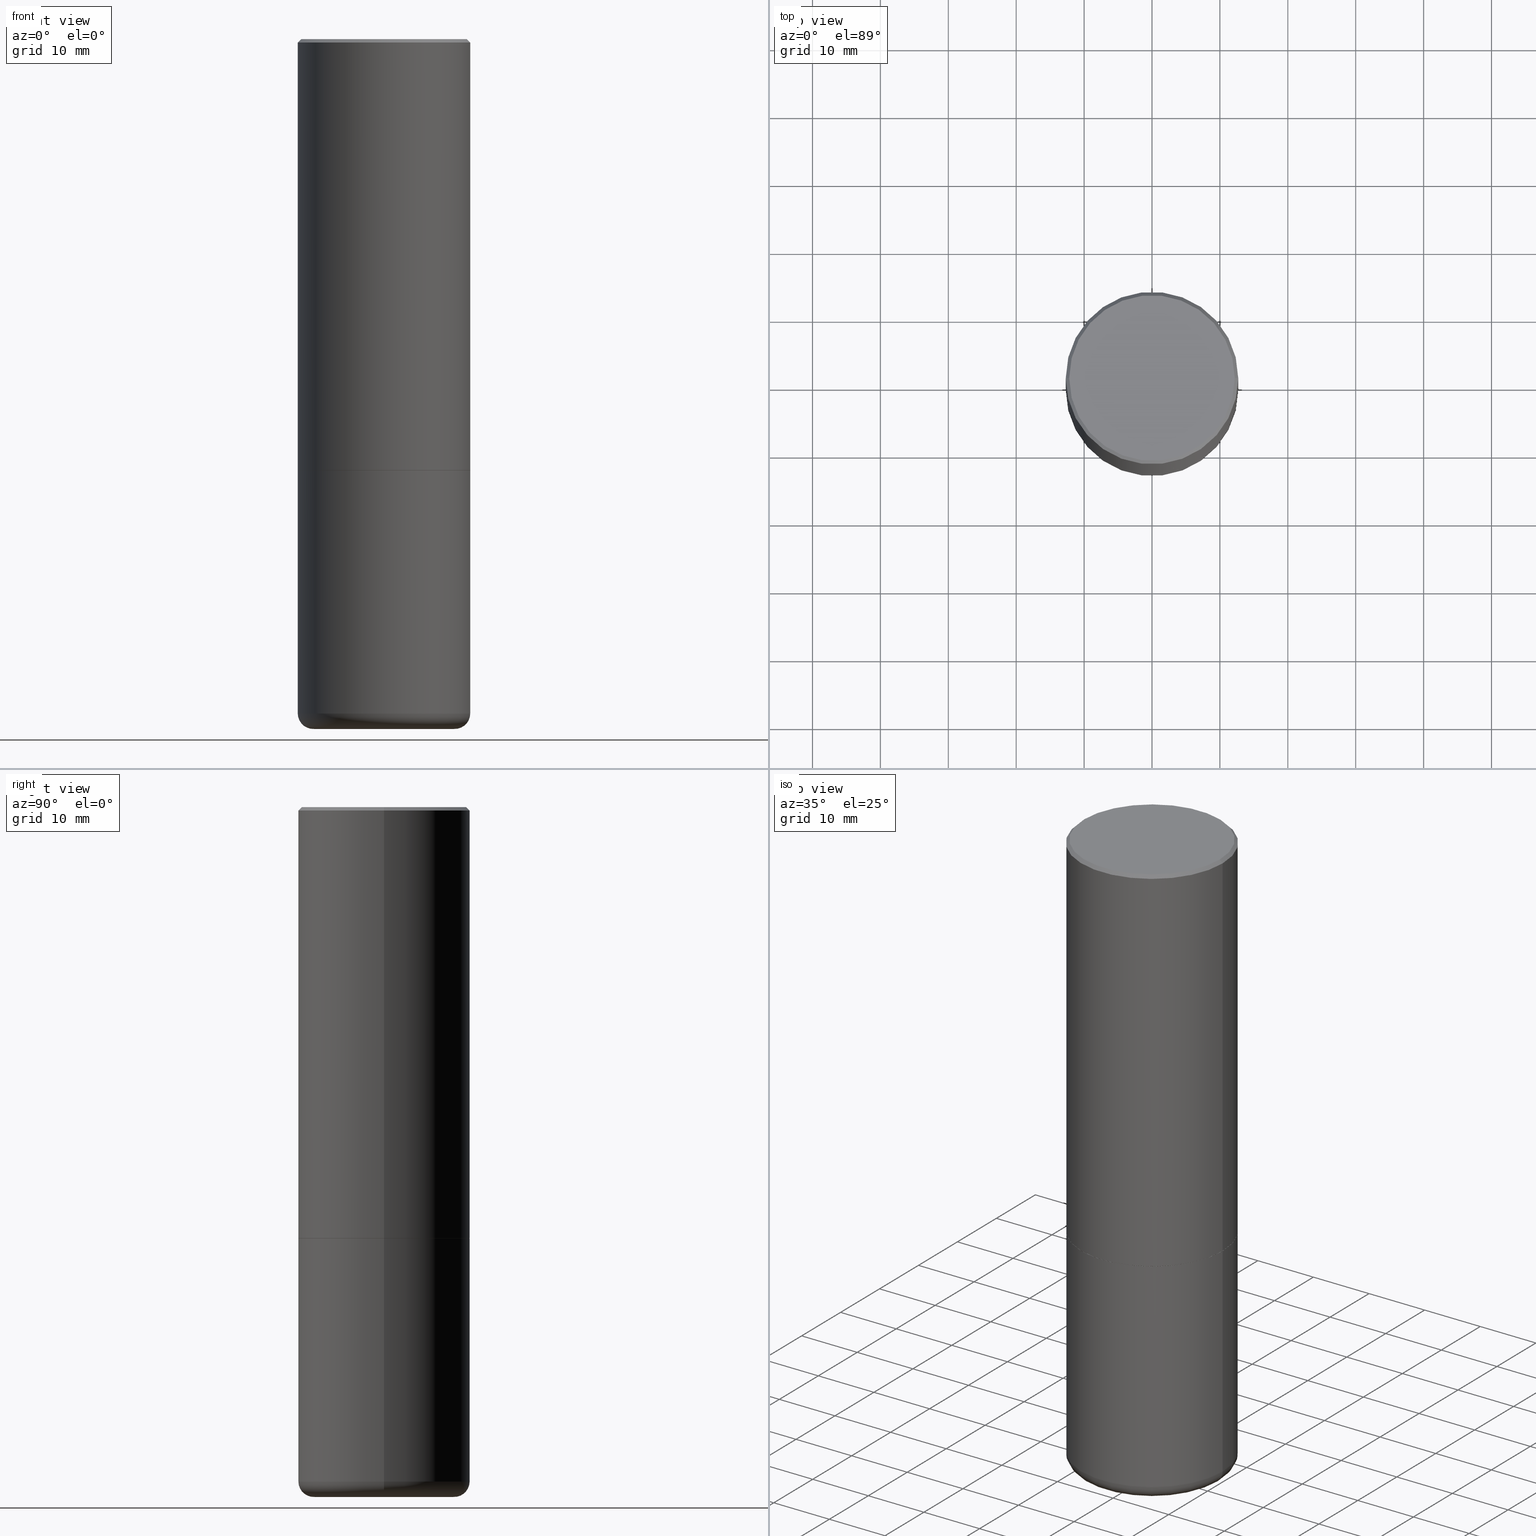
[diagram: canonical four-view strip — front | top / right | iso, engineering-drawing reading convention]
A machine part, canonical four-view strip (front | top / right | iso — engineering-drawing reading convention). The complete STEP part file that produces these views, byte-faithful:
ISO-10303-21;
HEADER;
FILE_DESCRIPTION (( 'STEP AP203' ),
    '1' );
FILE_NAME ('38155.STEP',
    '2023-03-22T20:25:32',
    ( '' ),
    ( '' ),
    'SwSTEP 2.0',
    'SolidWorks 2022',
    '' );
FILE_SCHEMA (( 'CONFIG_CONTROL_DESIGN' ));
ENDSEC;

DATA;
#1 = DATE_TIME_ROLE ( 'creation_date' ) ;
#2 = ORIENTED_EDGE ( 'NONE', *, *, #246, .F. ) ;
#3 = EDGE_CURVE ( 'NONE', #67, #433, #387, .T. ) ;
#4 = APPLICATION_PROTOCOL_DEFINITION ( 'international standard', 'config_control_design', 1994, #347 ) ;
#5 = CARTESIAN_POINT ( 'NONE',  ( 6.113672015462842613E-29, -8.728703347107864943E-15, -2.500000000000000000 ) ) ;
#6 = ORIENTED_EDGE ( 'NONE', *, *, #290, .F. ) ;
#7 = CIRCLE ( 'NONE', #121, 0.08999999999999999667 ) ;
#8 = CIRCLE ( 'NONE', #333, 0.5000000000000000000 ) ;
#9 = APPROVAL_DATE_TIME ( #283, #324 ) ;
#10 = DIRECTION ( 'NONE',  ( -2.445468806185136597E-29, 3.491481338843145583E-15, 1.000000000000000000 ) ) ;
#11 = CC_DESIGN_PERSON_AND_ORGANIZATION_ASSIGNMENT ( #170, #31, ( #424 ) ) ;
#12 = EDGE_LOOP ( 'NONE', ( #352, #340, #268, #135 ) ) ;
#13 = DIRECTION ( 'NONE',  ( 1.000000000000000000, -6.982962677686265922E-15, 4.876176775795935793E-29 ) ) ;
#14 = EDGE_CURVE ( 'NONE', #67, #231, #143, .T. ) ;
#15 = AXIS2_PLACEMENT_3D ( 'NONE', #123, #88, #223 ) ;
#16 = AXIS2_PLACEMENT_3D ( 'NONE', #233, #132, #404 ) ;
#17 = LINE ( 'NONE', #153, #414 ) ;
#18 = ADVANCED_FACE ( 'NONE', ( #214 ), #227, .F. ) ;
#19 = DIRECTION ( 'NONE',  ( 1.000000000000000000, -6.982962677686265133E-15, 0.000000000000000000 ) ) ;
#20 = DIRECTION ( 'NONE',  ( -2.445468806185136597E-29, 3.491481338843145583E-15, 1.000000000000000000 ) ) ;
#21 = CARTESIAN_POINT ( 'NONE',  ( -0.4099999999999999756, -1.073889746410498118E-14, -3.910123341872087988 ) ) ;
#22 = DIRECTION ( 'NONE',  ( -0.9986295347545742773, 6.790662755453666100E-15, -0.05233595624293709697 ) ) ;
#23 = ORIENTED_EDGE ( 'NONE', *, *, #232, .T. ) ;
#24 = CARTESIAN_POINT ( 'NONE',  ( -0.4999999999999998335, 3.552713678800499746E-15, -2.459467545127452330E-29 ) ) ;
#25 = ORIENTED_EDGE ( 'NONE', *, *, #3, .T. ) ;
#26 = DIMENSIONAL_EXPONENTS ( 1.000000000000000000, 0.000000000000000000, 0.000000000000000000, 0.000000000000000000, 0.000000000000000000, 0.000000000000000000, 0.000000000000000000 ) ;
#27 = CARTESIAN_POINT ( 'NONE',  ( 4.890937612370278413E-31, -6.982962677686297772E-17, -0.02000000000000002123 ) ) ;
#28 = TOROIDAL_SURFACE ( 'NONE', #15, 0.4099999999999999756, 0.08999999999999998279 ) ;
#29 = DIRECTION ( 'NONE',  ( 1.000000000000000000, -6.982962677686266711E-15, 0.000000000000000000 ) ) ;
#30 = ORIENTED_EDGE ( 'NONE', *, *, #419, .T. ) ;
#31 = PERSON_AND_ORGANIZATION_ROLE ( 'design_owner' ) ;
#32 = ORIENTED_EDGE ( 'NONE', *, *, #290, .T. ) ;
#33 = PERSON_AND_ORGANIZATION_ROLE ( 'classification_officer' ) ;
#34 = CYLINDRICAL_SURFACE ( 'NONE', #349, 0.5000000000000000000 ) ;
#35 = AXIS2_PLACEMENT_3D ( 'NONE', #263, #360, #330 ) ;
#36 = CC_DESIGN_APPROVAL ( #182, ( #357 ) ) ;
#37 = DIRECTION ( 'NONE',  ( 2.445468806185136597E-29, -3.491481338843145583E-15, -1.000000000000000000 ) ) ;
#38 = PERSON_AND_ORGANIZATION ( #166, #320 ) ;
#39 = CARTESIAN_POINT ( 'NONE',  ( 2.073276570644479590E-18, -1.389176511687253156E-14, -3.978759663505856636 ) ) ;
#40 = ADVANCED_FACE ( 'NONE', ( #384 ), #353, .T. ) ;
#41 = EDGE_CURVE ( 'NONE', #71, #285, #180, .T. ) ;
#42 = EDGE_LOOP ( 'NONE', ( #69, #373, #128, #439 ) ) ;
#43 = CLOSED_SHELL ( 'NONE', ( #76, #388, #126, #62, #371, #327, #74, #434 ) ) ;
#44 = CC_DESIGN_SECURITY_CLASSIFICATION ( #239, ( #357 ) ) ;
#45 = EDGE_LOOP ( 'NONE', ( #23, #174, #398, #216 ) ) ;
#46 = ADVANCED_FACE ( 'NONE', ( #317 ), #34, .T. ) ;
#47 = EDGE_CURVE ( 'NONE', #270, #231, #273, .T. ) ;
#48 = PRODUCT_DEFINITION_SHAPE ( 'NONE', 'NONE',  #286 ) ;
#49 = DIRECTION ( 'NONE',  ( -1.000000000000000000, 6.982962677686265922E-15, 0.000000000000000000 ) ) ;
#50 = COORDINATED_UNIVERSAL_TIME_OFFSET ( 5, 0, .BEHIND. ) ;
#51 = DIRECTION ( 'NONE',  ( 1.000000000000000000, -6.982962677686266711E-15, 0.000000000000000000 ) ) ;
#52 = AXIS2_PLACEMENT_3D ( 'NONE', #219, #157, #391 ) ;
#53 = LINE ( 'NONE', #189, #98 ) ;
#54 = DIRECTION ( 'NONE',  ( -2.445468806185136597E-29, 3.491481338843145583E-15, 1.000000000000000000 ) ) ;
#55 = DIRECTION ( 'NONE',  ( 1.000000000000000000, -6.982962677686269077E-15, 0.000000000000000000 ) ) ;
#56 = FACE_OUTER_BOUND ( 'NONE', #406, .T. ) ;
#57 = ORIENTED_EDGE ( 'NONE', *, *, #334, .T. ) ;
#58 = CARTESIAN_POINT ( 'NONE',  ( -0.4989999999999999991, -5.183095095664967388E-15, -2.500000000000000444 ) ) ;
#59 = EDGE_LOOP ( 'NONE', ( #336, #197 ) ) ;
#60 = DIRECTION ( 'NONE',  ( 1.000000000000000000, -6.982962677686267499E-15, 4.876036955247132767E-29 ) ) ;
#61 = EDGE_LOOP ( 'NONE', ( #403, #241 ) ) ;
#62 = ADVANCED_FACE ( 'NONE', ( #113 ), #401, .T. ) ;
#63 = DIRECTION ( 'NONE',  ( -2.445468806185136877E-29, 3.491481338843145188E-15, 1.000000000000000000 ) ) ;
#64 = CIRCLE ( 'NONE', #292, 0.4799999999999996492 ) ;
#65 =( GEOMETRIC_REPRESENTATION_CONTEXT ( 3 ) GLOBAL_UNCERTAINTY_ASSIGNED_CONTEXT ( ( #145 ) ) GLOBAL_UNIT_ASSIGNED_CONTEXT ( ( #354, #250, #345 ) ) REPRESENTATION_CONTEXT ( 'NONE', 'WORKASPACE' ) );
#66 = DIRECTION ( 'NONE',  ( 1.000000000000000000, -6.982962677686269077E-15, 0.000000000000000000 ) ) ;
#67 = VERTEX_POINT ( 'NONE', #106 ) ;
#68 = CALENDAR_DATE ( 2023, 22, 3 ) ;
#69 = ORIENTED_EDGE ( 'NONE', *, *, #293, .F. ) ;
#70 = DATE_TIME_ROLE ( 'classification_date' ) ;
#71 = VERTEX_POINT ( 'NONE', #248 ) ;
#72 = CONICAL_SURFACE ( 'NONE', #356, 0.4989999999999999991, 0.7853981633972775267 ) ;
#73 = ADVANCED_FACE ( 'NONE', ( #218 ), #358, .F. ) ;
#74 = ADVANCED_FACE ( 'NONE', ( #190 ), #365, .F. ) ;
#75 = EDGE_LOOP ( 'NONE', ( #133, #211 ) ) ;
#76 = ADVANCED_FACE ( 'NONE', ( #422 ), #72, .T. ) ;
#77 = DIRECTION ( 'NONE',  ( -2.445468806185136597E-29, 3.491481338843145583E-15, 1.000000000000000000 ) ) ;
#78 = PERSON_AND_ORGANIZATION ( #166, #320 ) ;
#79 = DIRECTION ( 'NONE',  ( -1.000000000000000000, 6.982962677686266711E-15, 0.000000000000000000 ) ) ;
#80 = AXIS2_PLACEMENT_3D ( 'NONE', #141, #147, #181 ) ;
#81 = SHAPE_DEFINITION_REPRESENTATION ( #48, #329 ) ;
#82 = DIRECTION ( 'NONE',  ( -2.445468806185136597E-29, 3.491481338843145583E-15, 1.000000000000000000 ) ) ;
#83 = CARTESIAN_POINT ( 'NONE',  ( 0.4999999999999996669, -3.500078625662626318E-15, -0.02000000000000002123 ) ) ;
#84 = DIRECTION ( 'NONE',  ( -0.7071067811865467956, 2.468850131082249172E-15, -0.7071067811865482389 ) ) ;
#85 = TOROIDAL_SURFACE ( 'NONE', #52, 0.4099999999999999756, 0.08999999999999998279 ) ;
#86 = CIRCLE ( 'NONE', #274, 0.4989999999999999991 ) ;
#87 = DIRECTION ( 'NONE',  ( -2.445468806185136597E-29, 3.491481338843145583E-15, 1.000000000000000000 ) ) ;
#88 = DIRECTION ( 'NONE',  ( -2.445468806185136597E-29, 3.491481338843145583E-15, 1.000000000000000000 ) ) ;
#89 = CYLINDRICAL_SURFACE ( 'NONE', #306, 0.4999999999999998335 ) ;
#90 = ORIENTED_EDGE ( 'NONE', *, *, #155, .F. ) ;
#91 = AXIS2_PLACEMENT_3D ( 'NONE', #425, #220, #261 ) ;
#92 = CARTESIAN_POINT ( 'NONE',  ( 0.4999999999999998335, -3.491481338843132566E-15, 2.438088387897967336E-29 ) ) ;
#93 = CIRCLE ( 'NONE', #201, 0.08999999999999999667 ) ;
#94 = ORIENTED_EDGE ( 'NONE', *, *, #14, .F. ) ;
#95 = LINE ( 'NONE', #58, #108 ) ;
#96 = CARTESIAN_POINT ( 'NONE',  ( -3.131554243005659264E-46, 4.471029511141341874E-32, 1.280553747030123384E-17 ) ) ;
#97 = DIRECTION ( 'NONE',  ( -1.000000000000000000, 6.982962677686265922E-15, -4.876176775795935793E-29 ) ) ;
#98 = VECTOR ( 'NONE', #328, 39.37007874015748143 ) ;
#99 = VERTEX_POINT ( 'NONE', #359 ) ;
#100 = PRODUCT_RELATED_PRODUCT_CATEGORY ( 'detail', '', ( #424 ) ) ;
#101 = PERSON_AND_ORGANIZATION_ROLE ( 'design_supplier' ) ;
#102 = ORIENTED_EDGE ( 'NONE', *, *, #254, .F. ) ;
#103 = APPLICATION_PROTOCOL_DEFINITION ( 'international standard', 'config_control_design', 1994, #115 ) ;
#104 = VERTEX_POINT ( 'NONE', #256 ) ;
#105 = PERSON_AND_ORGANIZATION ( #166, #320 ) ;
#106 = CARTESIAN_POINT ( 'NONE',  ( 0.5000000000000000000, -1.714360401956452473E-14, -3.910123341872087988 ) ) ;
#107 = AXIS2_PLACEMENT_3D ( 'NONE', #119, #389, #13 ) ;
#108 = VECTOR ( 'NONE', #161, 39.37007874015748143 ) ;
#109 = APPROVAL_PERSON_ORGANIZATION ( #38, #324, #318 ) ;
#110 = DATE_AND_TIME ( #415, #187 ) ;
#111 = ORIENTED_EDGE ( 'NONE', *, *, #277, .F. ) ;
#112 = COORDINATED_UNIVERSAL_TIME_OFFSET ( 5, 0, .BEHIND. ) ;
#113 = FACE_OUTER_BOUND ( 'NONE', #441, .T. ) ;
#114 = CARTESIAN_POINT ( 'NONE',  ( -0.5000000000000000000, -8.448070674724403070E-16, -2.499000000000000110 ) ) ;
#115 = APPLICATION_CONTEXT ( 'configuration controlled 3d designs of mechanical parts and assemblies' ) ;
#116 = MANIFOLD_SOLID_BREP ( 'Body-Move/Copy2[2]', #43 ) ;
#117 = VECTOR ( 'NONE', #63, 39.37007874015748143 ) ;
#118 = CARTESIAN_POINT ( 'NONE',  ( 4.890937612370278413E-31, -6.982962677686297772E-17, -0.02000000000000002123 ) ) ;
#119 = CARTESIAN_POINT ( 'NONE',  ( 6.113672015462842613E-29, -8.728703347107864943E-15, -2.500000000000000000 ) ) ;
#120 = CARTESIAN_POINT ( 'NONE',  ( -0.4052897639381357053, -1.059278869042589352E-14, -3.999999999999999556 ) ) ;
#121 = AXIS2_PLACEMENT_3D ( 'NONE', #432, #300, #66 ) ;
#122 = APPROVAL_PERSON_ORGANIZATION ( #78, #182, #316 ) ;
#123 = CARTESIAN_POINT ( 'NONE',  ( 9.562084660884571289E-29, -1.365212268072139138E-14, -3.910123341872087988 ) ) ;
#124 = EDGE_CURVE ( 'NONE', #199, #355, #238, .T. ) ;
#125 = FACE_OUTER_BOUND ( 'NONE', #75, .T. ) ;
#126 = ADVANCED_FACE ( 'NONE', ( #184 ), #367, .T. ) ;
#127 = LINE ( 'NONE', #24, #117 ) ;
#128 = ORIENTED_EDGE ( 'NONE', *, *, #315, .T. ) ;
#129 = CIRCLE ( 'NONE', #91, 0.4799999999999996492 ) ;
#130 = DIRECTION ( 'NONE',  ( 1.000000000000000000, -6.982962677686267499E-15, 4.876176775795936353E-29 ) ) ;
#131 = EDGE_LOOP ( 'NONE', ( #171, #165, #416, #346 ) ) ;
#132 = DIRECTION ( 'NONE',  ( -2.445468806185136597E-29, 3.491481338843145583E-15, 1.000000000000000000 ) ) ;
#133 = ORIENTED_EDGE ( 'NONE', *, *, #206, .T. ) ;
#134 = CARTESIAN_POINT ( 'NONE',  ( -0.5000000000000000000, -7.637699335114127230E-15, -3.910123341872087988 ) ) ;
#135 = ORIENTED_EDGE ( 'NONE', *, *, #431, .F. ) ;
#136 = DESIGN_CONTEXT ( 'detailed design', #347, 'design' ) ;
#137 = APPROVAL_DATE_TIME ( #310, #182 ) ;
#138 = VERTEX_POINT ( 'NONE', #120 ) ;
#139 = CALENDAR_DATE ( 2023, 22, 3 ) ;
#140 = ADVANCED_FACE ( 'NONE', ( #188 ), #85, .T. ) ;
#141 = CARTESIAN_POINT ( 'NONE',  ( 9.562084660884571289E-29, -1.365212268072139138E-14, -3.910123341872087988 ) ) ;
#142 = ORIENTED_EDGE ( 'NONE', *, *, #14, .T. ) ;
#143 = LINE ( 'NONE', #383, #296 ) ;
#144 = VECTOR ( 'NONE', #374, 39.37007874015748143 ) ;
#145 = UNCERTAINTY_MEASURE_WITH_UNIT (LENGTH_MEASURE( 1.000000000000000082E-05 ), #354, 'distance_accuracy_value', 'NONE');
#146 = MECHANICAL_CONTEXT ( 'NONE', #115, 'mechanical' ) ;
#147 = DIRECTION ( 'NONE',  ( -2.445468806185136597E-29, 3.491481338843145583E-15, 1.000000000000000000 ) ) ;
#148 = CARTESIAN_POINT ( 'NONE',  ( 6.111226546656657010E-29, -8.725211865769021935E-15, -2.499000000000000110 ) ) ;
#149 = APPROVAL ( #351, 'UNSPECIFIED' ) ;
#150 = DIRECTION ( 'NONE',  ( 2.445468806185136597E-29, -3.491481338843145583E-15, -1.000000000000000000 ) ) ;
#151 = CIRCLE ( 'NONE', #420, 0.5000000000000000000 ) ;
#152 = CC_DESIGN_APPROVAL ( #149, ( #239 ) ) ;
#153 = CARTESIAN_POINT ( 'NONE',  ( -0.4999999999999996669, 3.421651712066268085E-15, -0.02000000000000002123 ) ) ;
#154 = EDGE_CURVE ( 'NONE', #199, #104, #53, .T. ) ;
#155 = EDGE_CURVE ( 'NONE', #138, #285, #210, .T. ) ;
#156 = CARTESIAN_POINT ( 'NONE',  ( 0.4989999999999999991, -1.221320172327331386E-14, -2.500000000000000444 ) ) ;
#157 = DIRECTION ( 'NONE',  ( -2.445468806185136597E-29, 3.491481338843145583E-15, 1.000000000000000000 ) ) ;
#158 = VECTOR ( 'NONE', #22, 39.37007874015748143 ) ;
#159 = LOCAL_TIME ( 16, 25, 32.00000000000000000, #112 ) ;
#160 = CARTESIAN_POINT ( 'NONE',  ( 0.000000000000000000, 0.000000000000000000, 0.000000000000000000 ) ) ;
#161 = DIRECTION ( 'NONE',  ( -0.7071067811864267805, 7.493145998869918709E-15, 0.7071067811866682540 ) ) ;
#162 = EDGE_LOOP ( 'NONE', ( #102, #301, #90 ) ) ;
#163 = ADVANCED_FACE ( 'NONE', ( #362 ), #291, .F. ) ;
#164 = DIRECTION ( 'NONE',  ( -2.445468806185136597E-29, 3.491481338843145583E-15, 1.000000000000000000 ) ) ;
#165 = ORIENTED_EDGE ( 'NONE', *, *, #393, .T. ) ;
#166 = PERSON ( 'UNSPECIFIED', 'UNSPECIFIED', 'UNSPECIFIED', ('UNSPECIFIED'), ('UNSPECIFIED'), ('UNSPECIFIED') ) ;
#167 = DIRECTION ( 'NONE',  ( 1.000000000000000000, -6.982962677686266711E-15, 0.000000000000000000 ) ) ;
#168 = ORIENTED_EDGE ( 'NONE', *, *, #47, .F. ) ;
#169 = DIRECTION ( 'NONE',  ( 1.000000000000000000, -6.982962677686266711E-15, 0.000000000000000000 ) ) ;
#170 = PERSON_AND_ORGANIZATION ( #166, #320 ) ;
#171 = ORIENTED_EDGE ( 'NONE', *, *, #282, .F. ) ;
#172 = COORDINATED_UNIVERSAL_TIME_OFFSET ( 5, 0, .BEHIND. ) ;
#173 = AXIS2_PLACEMENT_3D ( 'NONE', #118, #150, #364 ) ;
#174 = ORIENTED_EDGE ( 'NONE', *, *, #293, .T. ) ;
#175 = DIRECTION ( 'NONE',  ( 0.000000000000000000, 0.000000000000000000, 1.000000000000000000 ) ) ;
#176 = CARTESIAN_POINT ( 'NONE',  ( 0.000000000000000000, 0.000000000000000000, 0.000000000000000000 ) ) ;
#177 = APPROVAL_STATUS ( 'not_yet_approved' ) ;
#178 = ORIENTED_EDGE ( 'NONE', *, *, #194, .F. ) ;
#179 =( LENGTH_UNIT ( ) NAMED_UNIT ( * ) SI_UNIT ( $, .METRE. ) );
#180 = LINE ( 'NONE', #39, #381 ) ;
#181 = DIRECTION ( 'NONE',  ( 1.000000000000000000, -6.982962677686266711E-15, 0.000000000000000000 ) ) ;
#182 = APPROVAL ( #252, 'UNSPECIFIED' ) ;
#183 = APPROVAL_ROLE ( '' ) ;
#184 = FACE_OUTER_BOUND ( 'NONE', #131, .T. ) ;
#185 = CARTESIAN_POINT ( 'NONE',  ( 6.113672015462842613E-29, -8.728703347107864943E-15, -2.500000000000000000 ) ) ;
#186 = CIRCLE ( 'NONE', #305, 0.5000000000000000000 ) ;
#187 = LOCAL_TIME ( 16, 25, 32.00000000000000000, #215 ) ;
#188 = FACE_OUTER_BOUND ( 'NONE', #309, .T. ) ;
#189 = CARTESIAN_POINT ( 'NONE',  ( 0.4989999999999999991, -1.221320172327331386E-14, -2.500000000000000444 ) ) ;
#190 = FACE_OUTER_BOUND ( 'NONE', #61, .T. ) ;
#191 = CC_DESIGN_APPROVAL ( #324, ( #286 ) ) ;
#192 = DIRECTION ( 'NONE',  ( 1.000000000000000000, -6.982962677686269077E-15, 0.000000000000000000 ) ) ;
#193 = VERTEX_POINT ( 'NONE', #83 ) ;
#194 = EDGE_CURVE ( 'NONE', #236, #104, #151, .T. ) ;
#195 = CARTESIAN_POINT ( 'NONE',  ( -2.073276570449880932E-18, -1.389176511687253156E-14, -3.978759663505856636 ) ) ;
#196 = EDGE_CURVE ( 'NONE', #231, #270, #361, .T. ) ;
#197 = ORIENTED_EDGE ( 'NONE', *, *, #47, .T. ) ;
#198 = CYLINDRICAL_SURFACE ( 'NONE', #16, 0.4999999999999998335 ) ;
#199 = VERTEX_POINT ( 'NONE', #156 ) ;
#200 = EDGE_CURVE ( 'NONE', #380, #338, #17, .T. ) ;
#201 = AXIS2_PLACEMENT_3D ( 'NONE', #21, #343, #265 ) ;
#202 = CARTESIAN_POINT ( 'NONE',  ( 0.4999999999999996669, -3.500078625662626318E-15, -0.02000000000000002123 ) ) ;
#203 = ORIENTED_EDGE ( 'NONE', *, *, #246, .T. ) ;
#204 = LINE ( 'NONE', #195, #158 ) ;
#205 = EDGE_LOOP ( 'NONE', ( #437, #203, #303, #417 ) ) ;
#206 = EDGE_CURVE ( 'NONE', #380, #99, #129, .T. ) ;
#207 = PERSON_AND_ORGANIZATION ( #166, #320 ) ;
#208 = DIRECTION ( 'NONE',  ( 0.9986295347545742773, -7.033825938271998700E-15, -0.05233595624293709697 ) ) ;
#209 = PERSON_AND_ORGANIZATION ( #166, #320 ) ;
#210 = CIRCLE ( 'NONE', #247, 0.4052897639381357053 ) ;
#211 = ORIENTED_EDGE ( 'NONE', *, *, #282, .T. ) ;
#212 = CC_DESIGN_DATE_AND_TIME_ASSIGNMENT ( #244, #70, ( #239 ) ) ;
#213 = DIRECTION ( 'NONE',  ( 1.000000000000000000, 0.000000000000000000, 0.000000000000000000 ) ) ;
#214 = FACE_OUTER_BOUND ( 'NONE', #322, .T. ) ;
#215 = COORDINATED_UNIVERSAL_TIME_OFFSET ( 5, 0, .BEHIND. ) ;
#216 = ORIENTED_EDGE ( 'NONE', *, *, #315, .F. ) ;
#217 = EDGE_CURVE ( 'NONE', #193, #338, #319, .T. ) ;
#218 = FACE_OUTER_BOUND ( 'NONE', #59, .T. ) ;
#219 = CARTESIAN_POINT ( 'NONE',  ( 9.562084660884571289E-29, -1.365212268072139138E-14, -3.910123341872087988 ) ) ;
#220 = DIRECTION ( 'NONE',  ( -2.445468806185136597E-29, 3.491481338843145583E-15, 1.000000000000000000 ) ) ;
#221 = AXIS2_PLACEMENT_3D ( 'NONE', #395, #87, #323 ) ;
#222 = FACE_OUTER_BOUND ( 'NONE', #12, .T. ) ;
#223 = DIRECTION ( 'NONE',  ( 1.000000000000000000, -6.982962677686266711E-15, 4.883557194083113462E-29 ) ) ;
#224 = CC_DESIGN_DATE_AND_TIME_ASSIGNMENT ( #110, #1, ( #286 ) ) ;
#225 = CARTESIAN_POINT ( 'NONE',  ( 0.4052897639381357053, -1.679604865060086105E-14, -3.999999999999999556 ) ) ;
#226 = ORIENTED_EDGE ( 'NONE', *, *, #3, .F. ) ;
#227 = CONICAL_SURFACE ( 'NONE', #442, 751.2258538476644389, 1.518436449235073482 ) ;
#228 = AXIS2_PLACEMENT_3D ( 'NONE', #267, #405, #192 ) ;
#229 = ADVANCED_FACE ( 'NONE', ( #222 ), #28, .T. ) ;
#230 = CARTESIAN_POINT ( 'NONE',  ( -0.4989999999999999991, -5.177796641316744197E-15, -2.500000000000000444 ) ) ;
#231 = VERTEX_POINT ( 'NONE', #426 ) ;
#232 = EDGE_CURVE ( 'NONE', #104, #236, #186, .T. ) ;
#233 = CARTESIAN_POINT ( 'NONE',  ( 0.000000000000000000, 0.000000000000000000, 0.000000000000000000 ) ) ;
#234 = CC_DESIGN_PERSON_AND_ORGANIZATION_ASSIGNMENT ( #105, #275, ( #357 ) ) ;
#235 = LINE ( 'NONE', #202, #312 ) ;
#236 = VERTEX_POINT ( 'NONE', #114 ) ;
#237 = CLOSED_SHELL ( 'NONE', ( #163, #140, #40, #73, #46, #229, #18 ) ) ;
#238 = CIRCLE ( 'NONE', #326, 0.4989999999999999991 ) ;
#239 = SECURITY_CLASSIFICATION ( '', '', #280 ) ;
#240 = DIRECTION ( 'NONE',  ( 1.000000000000000000, -6.982962677686266711E-15, 0.000000000000000000 ) ) ;
#241 = ORIENTED_EDGE ( 'NONE', *, *, #299, .F. ) ;
#242 = PERSON_AND_ORGANIZATION ( #166, #320 ) ;
#243 = CARTESIAN_POINT ( 'NONE',  ( 1.060082321005189927E-27, -1.513516603469176358E-13, -43.34883840366333629 ) ) ;
#244 = DATE_AND_TIME ( #139, #350 ) ;
#245 = CARTESIAN_POINT ( 'NONE',  ( 0.000000000000000000, 0.000000000000000000, 0.000000000000000000 ) ) ;
#246 = EDGE_CURVE ( 'NONE', #355, #236, #95, .T. ) ;
#247 = AXIS2_PLACEMENT_3D ( 'NONE', #289, #259, #55 ) ;
#248 = CARTESIAN_POINT ( 'NONE',  ( 9.731380405702508326E-29, -1.388969184030198538E-14, -3.978759663505856636 ) ) ;
#249 = AXIS2_PLACEMENT_3D ( 'NONE', #377, #175, #213 ) ;
#250 =( NAMED_UNIT ( * ) PLANE_ANGLE_UNIT ( ) SI_UNIT ( $, .RADIAN. ) );
#251 = ORIENTED_EDGE ( 'NONE', *, *, #254, .T. ) ;
#252 = APPROVAL_STATUS ( 'not_yet_approved' ) ;
#253 = ORIENTED_EDGE ( 'NONE', *, *, #431, .T. ) ;
#254 = EDGE_CURVE ( 'NONE', #71, #138, #204, .T. ) ;
#255 = APPROVAL_DATE_TIME ( #258, #149 ) ;
#256 = CARTESIAN_POINT ( 'NONE',  ( 0.5000000000000000000, -1.221669320461215371E-14, -2.499000000000000110 ) ) ;
#257 = AXIS2_PLACEMENT_3D ( 'NONE', #5, #10, #287 ) ;
#258 = DATE_AND_TIME ( #390, #427 ) ;
#259 = DIRECTION ( 'NONE',  ( -2.445468806185136597E-29, 3.491481338843145583E-15, 1.000000000000000000 ) ) ;
#260 = DIRECTION ( 'NONE',  ( 2.445468806185136597E-29, -3.491481338843145583E-15, -1.000000000000000000 ) ) ;
#261 = DIRECTION ( 'NONE',  ( 1.000000000000000000, -6.982962677686267499E-15, 4.876036955247132767E-29 ) ) ;
#262 = CONICAL_SURFACE ( 'NONE', #382, 0.4989999999999999991, 0.7853981633972775267 ) ;
#263 = CARTESIAN_POINT ( 'NONE',  ( 3.491481338843194098E-15, 0.4999999999999912292, -2.500000000000001776 ) ) ;
#264 = CC_DESIGN_PERSON_AND_ORGANIZATION_ASSIGNMENT ( #207, #101, ( #357 ) ) ;
#265 = DIRECTION ( 'NONE',  ( -1.000000000000000000, 7.105427357600990815E-15, 0.000000000000000000 ) ) ;
#266 = DIRECTION ( 'NONE',  ( -2.445468806185136597E-29, 3.491481338843145583E-15, 1.000000000000000000 ) ) ;
#267 = CARTESIAN_POINT ( 'NONE',  ( 9.781875224740545266E-29, -1.396592535537258075E-14, -3.999999999999999556 ) ) ;
#268 = ORIENTED_EDGE ( 'NONE', *, *, #277, .T. ) ;
#269 = DIRECTION ( 'NONE',  ( -2.445468806185136877E-29, 3.491481338843145188E-15, 1.000000000000000000 ) ) ;
#270 = VERTEX_POINT ( 'NONE', #372 ) ;
#271 = DIRECTION ( 'NONE',  ( 2.438088387897960049E-29, -3.491481338843145188E-15, -1.000000000000000000 ) ) ;
#272 = ORIENTED_EDGE ( 'NONE', *, *, #379, .F. ) ;
#273 = CIRCLE ( 'NONE', #257, 0.5000000000000000000 ) ;
#274 = AXIS2_PLACEMENT_3D ( 'NONE', #335, #164, #167 ) ;
#275 = PERSON_AND_ORGANIZATION_ROLE ( 'creator' ) ;
#276 = EDGE_LOOP ( 'NONE', ( #6, #253, #142, #168 ) ) ;
#277 = EDGE_CURVE ( 'NONE', #285, #67, #7, .T. ) ;
#278 = CALENDAR_DATE ( 2023, 22, 3 ) ;
#279 = DIRECTION ( 'NONE',  ( 1.000000000000000000, -6.982962677686266711E-15, 4.876176775795935793E-29 ) ) ;
#280 = SECURITY_CLASSIFICATION_LEVEL ( 'unclassified' ) ;
#281 = DIRECTION ( 'NONE',  ( 2.445468806185136597E-29, -3.491481338843145583E-15, -1.000000000000000000 ) ) ;
#282 = EDGE_CURVE ( 'NONE', #99, #380, #64, .T. ) ;
#283 = DATE_AND_TIME ( #278, #159 ) ;
#284 = VECTOR ( 'NONE', #269, 39.37007874015748143 ) ;
#285 = VERTEX_POINT ( 'NONE', #225 ) ;
#286 = PRODUCT_DEFINITION ( 'UNKNOWN', '', #357, #136 ) ;
#287 = DIRECTION ( 'NONE',  ( 1.000000000000000000, -6.982962677686269077E-15, 0.000000000000000000 ) ) ;
#288 = DIRECTION ( 'NONE',  ( -2.445468806185136597E-29, 3.491481338843145583E-15, 1.000000000000000000 ) ) ;
#289 = CARTESIAN_POINT ( 'NONE',  ( 9.781875224740545266E-29, -1.396592535537258075E-14, -3.999999999999999556 ) ) ;
#290 = EDGE_CURVE ( 'NONE', #433, #270, #298, .T. ) ;
#291 = CONICAL_SURFACE ( 'NONE', #394, 751.2258538476644389, 1.518436449235073482 ) ;
#292 = AXIS2_PLACEMENT_3D ( 'NONE', #96, #337, #60 ) ;
#293 = EDGE_CURVE ( 'NONE', #236, #338, #127, .T. ) ;
#294 = CARTESIAN_POINT ( 'NONE',  ( 6.113672015462842613E-29, -8.728703347107866520E-15, -2.500000000000000444 ) ) ;
#295 = DIRECTION ( 'NONE',  ( 1.000000000000000000, -6.982962677686266711E-15, 0.000000000000000000 ) ) ;
#296 = VECTOR ( 'NONE', #410, 39.37007874015748143 ) ;
#297 = CC_DESIGN_PERSON_AND_ORGANIZATION_ASSIGNMENT ( #242, #385, ( #286 ) ) ;
#298 = LINE ( 'NONE', #366, #284 ) ;
#299 = EDGE_CURVE ( 'NONE', #355, #199, #86, .T. ) ;
#300 = DIRECTION ( 'NONE',  ( -6.982962677686266711E-15, -1.000000000000000000, 3.491481338843145583E-15 ) ) ;
#301 = ORIENTED_EDGE ( 'NONE', *, *, #41, .T. ) ;
#302 = DIRECTION ( 'NONE',  ( -2.445468806185136597E-29, 3.491481338843145583E-15, 1.000000000000000000 ) ) ;
#303 = ORIENTED_EDGE ( 'NONE', *, *, #232, .F. ) ;
#304 = AXIS2_PLACEMENT_3D ( 'NONE', #185, #423, #325 ) ;
#305 = AXIS2_PLACEMENT_3D ( 'NONE', #148, #288, #418 ) ;
#306 = AXIS2_PLACEMENT_3D ( 'NONE', #160, #266, #130 ) ;
#307 = DIRECTION ( 'NONE',  ( -2.445468806185136597E-29, 3.491481338843145583E-15, 1.000000000000000000 ) ) ;
#308 = CARTESIAN_POINT ( 'NONE',  ( 6.113672015462842613E-29, -8.728703347107866520E-15, -2.500000000000000444 ) ) ;
#309 = EDGE_LOOP ( 'NONE', ( #386, #30, #226, #111 ) ) ;
#310 = DATE_AND_TIME ( #68, #363 ) ;
#311 = ORIENTED_EDGE ( 'NONE', *, *, #154, .T. ) ;
#312 = VECTOR ( 'NONE', #438, 39.37007874015748143 ) ;
#313 = DIRECTION ( 'NONE',  ( -1.000000000000000000, 6.982962677686265922E-15, 0.000000000000000000 ) ) ;
#314 = DIRECTION ( 'NONE',  ( 1.000000000000000000, -6.982962677686266711E-15, 4.876176775795935793E-29 ) ) ;
#315 = EDGE_CURVE ( 'NONE', #104, #193, #376, .T. ) ;
#316 = APPROVAL_ROLE ( '' ) ;
#317 = FACE_OUTER_BOUND ( 'NONE', #276, .T. ) ;
#318 = APPROVAL_ROLE ( '' ) ;
#319 = CIRCLE ( 'NONE', #221, 0.4999999999999996669 ) ;
#320 = ORGANIZATION ( 'UNSPECIFIED', 'UNSPECIFIED', '' ) ;
#321 = ORIENTED_EDGE ( 'NONE', *, *, #200, .T. ) ;
#322 = EDGE_LOOP ( 'NONE', ( #370, #251, #272 ) ) ;
#323 = DIRECTION ( 'NONE',  ( 1.000000000000000000, -6.982962677686266711E-15, 0.000000000000000000 ) ) ;
#324 = APPROVAL ( #177, 'UNSPECIFIED' ) ;
#325 = DIRECTION ( 'NONE',  ( 1.000000000000000000, -6.982962677686269077E-15, 0.000000000000000000 ) ) ;
#326 = AXIS2_PLACEMENT_3D ( 'NONE', #294, #82, #295 ) ;
#327 = ADVANCED_FACE ( 'NONE', ( #56 ), #262, .T. ) ;
#328 = DIRECTION ( 'NONE',  ( 0.7071067811864267805, -2.468850131080992517E-15, 0.7071067811866682540 ) ) ;
#329 = ADVANCED_BREP_SHAPE_REPRESENTATION ( '38155', ( #407, #116, #249 ), #65 ) ;
#330 = DIRECTION ( 'NONE',  ( -1.000000000000000000, 6.982962677686265922E-15, -4.876176775795935793E-29 ) ) ;
#331 = CARTESIAN_POINT ( 'NONE',  ( 1.060082321005189927E-27, -1.513516603469176358E-13, -43.34883840366333629 ) ) ;
#332 = AXIS2_PLACEMENT_3D ( 'NONE', #176, #77, #314 ) ;
#333 = AXIS2_PLACEMENT_3D ( 'NONE', #428, #399, #169 ) ;
#334 = EDGE_CURVE ( 'NONE', #338, #193, #408, .T. ) ;
#335 = CARTESIAN_POINT ( 'NONE',  ( 6.113672015462842613E-29, -8.728703347107866520E-15, -2.500000000000000444 ) ) ;
#336 = ORIENTED_EDGE ( 'NONE', *, *, #196, .T. ) ;
#337 = DIRECTION ( 'NONE',  ( -2.445468806185136597E-29, 3.491481338843145583E-15, 1.000000000000000000 ) ) ;
#338 = VERTEX_POINT ( 'NONE', #429 ) ;
#339 = FACE_OUTER_BOUND ( 'NONE', #42, .T. ) ;
#340 = ORIENTED_EDGE ( 'NONE', *, *, #155, .T. ) ;
#341 = AXIS2_PLACEMENT_3D ( 'NONE', #412, #281, #79 ) ;
#342 = AXIS2_PLACEMENT_3D ( 'NONE', #27, #307, #240 ) ;
#343 = DIRECTION ( 'NONE',  ( 7.105427357601001859E-15, 1.000000000000000000, -3.491481338843145583E-15 ) ) ;
#344 = ORIENTED_EDGE ( 'NONE', *, *, #393, .F. ) ;
#345 =( NAMED_UNIT ( * ) SI_UNIT ( $, .STERADIAN. ) SOLID_ANGLE_UNIT ( ) );
#346 = ORIENTED_EDGE ( 'NONE', *, *, #200, .F. ) ;
#347 = APPLICATION_CONTEXT ( 'configuration controlled 3d designs of mechanical parts and assemblies' ) ;
#348 = DIRECTION ( 'NONE',  ( -2.445468806185136597E-29, 3.491481338843145583E-15, 1.000000000000000000 ) ) ;
#349 = AXIS2_PLACEMENT_3D ( 'NONE', #245, #348, #279 ) ;
#350 = LOCAL_TIME ( 16, 25, 32.00000000000000000, #172 ) ;
#351 = APPROVAL_STATUS ( 'not_yet_approved' ) ;
#352 = ORIENTED_EDGE ( 'NONE', *, *, #419, .F. ) ;
#353 = CYLINDRICAL_SURFACE ( 'NONE', #332, 0.5000000000000000000 ) ;
#354 =( CONVERSION_BASED_UNIT ( 'INCH', #409 ) LENGTH_UNIT ( ) NAMED_UNIT ( #26 ) );
#355 = VERTEX_POINT ( 'NONE', #230 ) ;
#356 = AXIS2_PLACEMENT_3D ( 'NONE', #392, #54, #51 ) ;
#357 = PRODUCT_DEFINITION_FORMATION_WITH_SPECIFIED_SOURCE ( 'ANY', '', #424, .NOT_KNOWN. ) ;
#358 = PLANE ( 'NONE',  #35 ) ;
#359 = CARTESIAN_POINT ( 'NONE',  ( 0.4799999999999996492, -3.396558832296479338E-15, 1.280553747032483033E-17 ) ) ;
#360 = DIRECTION ( 'NONE',  ( 2.438088387897960049E-29, -3.491481338843145188E-15, -1.000000000000000000 ) ) ;
#361 = CIRCLE ( 'NONE', #304, 0.5000000000000000000 ) ;
#362 = FACE_OUTER_BOUND ( 'NONE', #162, .T. ) ;
#363 = LOCAL_TIME ( 16, 25, 32.00000000000000000, #440 ) ;
#364 = DIRECTION ( 'NONE',  ( -1.000000000000000000, 6.982962677686266711E-15, 0.000000000000000000 ) ) ;
#365 = PLANE ( 'NONE',  #107 ) ;
#366 = CARTESIAN_POINT ( 'NONE',  ( -0.5000000000000000000, 3.552713678800500929E-15, -2.459467545127452891E-29 ) ) ;
#367 = CONICAL_SURFACE ( 'NONE', #173, 0.4999999999999996669, 0.7853981633974472798 ) ;
#368 = CIRCLE ( 'NONE', #228, 0.4052897639381357053 ) ;
#369 = CARTESIAN_POINT ( 'NONE',  ( 3.351822085289405181E-15, 0.4799999999999996492, -1.669508273909558064E-15 ) ) ;
#370 = ORIENTED_EDGE ( 'NONE', *, *, #41, .F. ) ;
#371 = ADVANCED_FACE ( 'NONE', ( #339 ), #89, .T. ) ;
#372 = CARTESIAN_POINT ( 'NONE',  ( -0.5000000000000000000, -7.637699335114127230E-15, -2.500000000000000000 ) ) ;
#373 = ORIENTED_EDGE ( 'NONE', *, *, #194, .T. ) ;
#374 = DIRECTION ( 'NONE',  ( -2.445468806185136877E-29, 3.491481338843145188E-15, 1.000000000000000000 ) ) ;
#375 = APPROVAL_PERSON_ORGANIZATION ( #209, #149, #183 ) ;
#376 = LINE ( 'NONE', #92, #144 ) ;
#377 = CARTESIAN_POINT ( 'NONE',  ( 0.000000000000000000, 0.000000000000000000, 0.000000000000000000 ) ) ;
#378 = ORIENTED_EDGE ( 'NONE', *, *, #196, .F. ) ;
#379 = EDGE_CURVE ( 'NONE', #285, #138, #368, .T. ) ;
#380 = VERTEX_POINT ( 'NONE', #402 ) ;
#381 = VECTOR ( 'NONE', #208, 39.37007874015748143 ) ;
#382 = AXIS2_PLACEMENT_3D ( 'NONE', #308, #302, #29 ) ;
#383 = CARTESIAN_POINT ( 'NONE',  ( 0.5000000000000000000, -3.491481338843133355E-15, 2.438088387897967896E-29 ) ) ;
#384 = FACE_OUTER_BOUND ( 'NONE', #400, .T. ) ;
#385 = PERSON_AND_ORGANIZATION_ROLE ( 'creator' ) ;
#386 = ORIENTED_EDGE ( 'NONE', *, *, #379, .T. ) ;
#387 = CIRCLE ( 'NONE', #80, 0.5000000000000000000 ) ;
#388 = ADVANCED_FACE ( 'NONE', ( #435 ), #198, .T. ) ;
#389 = DIRECTION ( 'NONE',  ( -2.438088387897960049E-29, 3.491481338843145188E-15, 1.000000000000000000 ) ) ;
#390 = CALENDAR_DATE ( 2023, 22, 3 ) ;
#391 = DIRECTION ( 'NONE',  ( 1.000000000000000000, -6.982962677686266711E-15, 4.883557194083113462E-29 ) ) ;
#392 = CARTESIAN_POINT ( 'NONE',  ( 6.113672015462842613E-29, -8.728703347107866520E-15, -2.500000000000000444 ) ) ;
#393 = EDGE_CURVE ( 'NONE', #99, #193, #235, .T. ) ;
#394 = AXIS2_PLACEMENT_3D ( 'NONE', #331, #260, #49 ) ;
#395 = CARTESIAN_POINT ( 'NONE',  ( 4.890937612370278413E-31, -6.982962677686297772E-17, -0.02000000000000002123 ) ) ;
#396 = CARTESIAN_POINT ( 'NONE',  ( 6.111226546656657010E-29, -8.725211865769021935E-15, -2.499000000000000110 ) ) ;
#397 = PLANE ( 'NONE',  #421 ) ;
#398 = ORIENTED_EDGE ( 'NONE', *, *, #217, .F. ) ;
#399 = DIRECTION ( 'NONE',  ( -2.445468806185136597E-29, 3.491481338843145583E-15, 1.000000000000000000 ) ) ;
#400 = EDGE_LOOP ( 'NONE', ( #25, #32, #378, #94 ) ) ;
#401 = CONICAL_SURFACE ( 'NONE', #341, 0.4999999999999996669, 0.7853981633974472798 ) ;
#402 = CARTESIAN_POINT ( 'NONE',  ( -0.4799999999999996492, 3.386736898677836830E-15, 1.280553747027767124E-17 ) ) ;
#403 = ORIENTED_EDGE ( 'NONE', *, *, #124, .F. ) ;
#404 = DIRECTION ( 'NONE',  ( 1.000000000000000000, -6.982962677686267499E-15, 4.876176775795936353E-29 ) ) ;
#405 = DIRECTION ( 'NONE',  ( -2.445468806185136597E-29, 3.491481338843145583E-15, 1.000000000000000000 ) ) ;
#406 = EDGE_LOOP ( 'NONE', ( #2, #413, #311, #178 ) ) ;
#407 = MANIFOLD_SOLID_BREP ( 'Body-Move/Copy2[1]', #237 ) ;
#408 = CIRCLE ( 'NONE', #342, 0.4999999999999996669 ) ;
#409 = LENGTH_MEASURE_WITH_UNIT ( LENGTH_MEASURE( 0.02539999999999999897 ), #179 );
#410 = DIRECTION ( 'NONE',  ( -2.445468806185136877E-29, 3.491481338843145188E-15, 1.000000000000000000 ) ) ;
#411 = PERSON_AND_ORGANIZATION ( #166, #320 ) ;
#412 = CARTESIAN_POINT ( 'NONE',  ( 4.890937612370278413E-31, -6.982962677686297772E-17, -0.02000000000000002123 ) ) ;
#413 = ORIENTED_EDGE ( 'NONE', *, *, #299, .T. ) ;
#414 = VECTOR ( 'NONE', #84, 39.37007874015748143 ) ;
#415 = CALENDAR_DATE ( 2023, 22, 3 ) ;
#416 = ORIENTED_EDGE ( 'NONE', *, *, #217, .T. ) ;
#417 = ORIENTED_EDGE ( 'NONE', *, *, #154, .F. ) ;
#418 = DIRECTION ( 'NONE',  ( 1.000000000000000000, -6.982962677686265133E-15, 0.000000000000000000 ) ) ;
#419 = EDGE_CURVE ( 'NONE', #138, #433, #93, .T. ) ;
#420 = AXIS2_PLACEMENT_3D ( 'NONE', #396, #20, #19 ) ;
#421 = AXIS2_PLACEMENT_3D ( 'NONE', #369, #271, #97 ) ;
#422 = FACE_OUTER_BOUND ( 'NONE', #205, .T. ) ;
#423 = DIRECTION ( 'NONE',  ( -2.445468806185136597E-29, 3.491481338843145583E-15, 1.000000000000000000 ) ) ;
#424 = PRODUCT ( '38155', '38155', '', ( #146 ) ) ;
#425 = CARTESIAN_POINT ( 'NONE',  ( -3.131554243005659264E-46, 4.471029511141341874E-32, 1.280553747030123384E-17 ) ) ;
#426 = CARTESIAN_POINT ( 'NONE',  ( 0.5000000000000000000, -1.222018468595099830E-14, -2.500000000000000000 ) ) ;
#427 = LOCAL_TIME ( 16, 25, 32.00000000000000000, #50 ) ;
#428 = CARTESIAN_POINT ( 'NONE',  ( 9.562084660884571289E-29, -1.365212268072139138E-14, -3.910123341872087988 ) ) ;
#429 = CARTESIAN_POINT ( 'NONE',  ( -0.4999999999999996669, 3.421651712066268085E-15, -0.02000000000000002123 ) ) ;
#430 = ORIENTED_EDGE ( 'NONE', *, *, #206, .F. ) ;
#431 = EDGE_CURVE ( 'NONE', #433, #67, #8, .T. ) ;
#432 = CARTESIAN_POINT ( 'NONE',  ( 0.4099999999999999756, -1.651513737857276136E-14, -3.910123341872087988 ) ) ;
#433 = VERTEX_POINT ( 'NONE', #134 ) ;
#434 = ADVANCED_FACE ( 'NONE', ( #125 ), #397, .F. ) ;
#435 = FACE_OUTER_BOUND ( 'NONE', #45, .T. ) ;
#436 = CC_DESIGN_PERSON_AND_ORGANIZATION_ASSIGNMENT ( #411, #33, ( #239 ) ) ;
#437 = ORIENTED_EDGE ( 'NONE', *, *, #124, .T. ) ;
#438 = DIRECTION ( 'NONE',  ( 0.7071067811865467956, -7.319954787623254468E-15, -0.7071067811865482389 ) ) ;
#439 = ORIENTED_EDGE ( 'NONE', *, *, #334, .F. ) ;
#440 = COORDINATED_UNIVERSAL_TIME_OFFSET ( 5, 0, .BEHIND. ) ;
#441 = EDGE_LOOP ( 'NONE', ( #344, #430, #321, #57 ) ) ;
#442 = AXIS2_PLACEMENT_3D ( 'NONE', #243, #37, #313 ) ;
ENDSEC;
END-ISO-10303-21;
